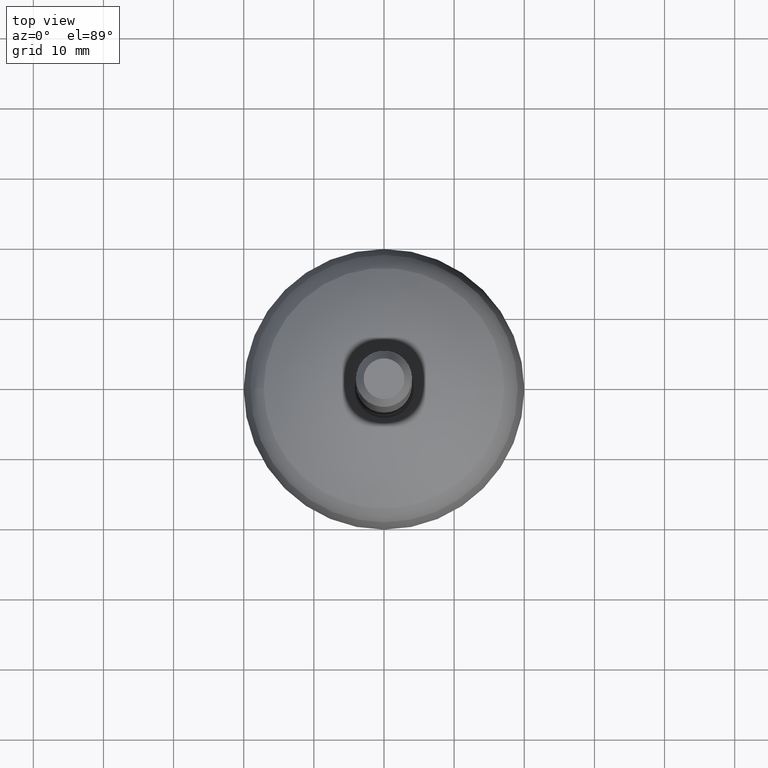
[diagram: clean part render]
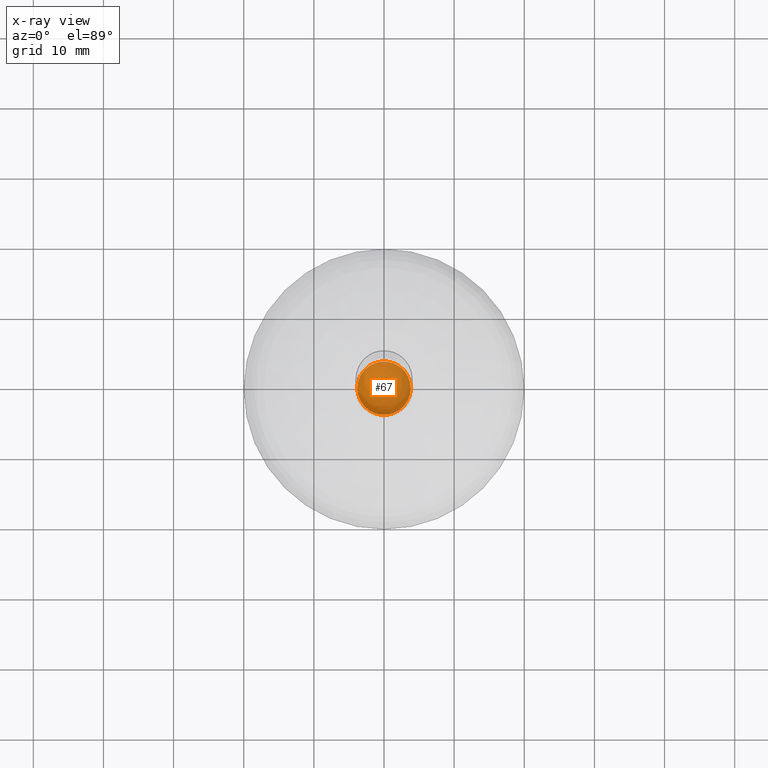
[diagram: x-ray — body ghosted, one internal face saturated and labeled with its STEP entity id]
A machine part, top view, then the same camera in x-ray: the body is ghosted and one INTERNAL B-rep face — a face not visible from any outside direction — is saturated and labeled: STEP entity #67.
In plain terms, the highlighted face is a freeform B-spline surface patch.
Its self-contained STEP definition (entity closure, byte-faithful):
#2=CARTESIAN_POINT('',(3.810523784241874,-0.000000215555772,8.535202277450591));
#3=CARTESIAN_POINT('',(2.540346776277441,-0.000000143703711,6.335196045854904));
#4=CARTESIAN_POINT('',(-0.000000132000216,8.052822E-015,6.335203443266764));
#5=CARTESIAN_POINT('',(3.810523999797659,3.810523784241881,8.535202277450591));
#6=CARTESIAN_POINT('',(2.540346919981162,2.540346776277445,6.335196045854901));
#7=CARTESIAN_POINT('',(-0.000000132000226,-0.000000132000215,6.335203443266761));
#8=CARTESIAN_POINT('',(0.0,3.810523784241879,8.535202277450587));
#9=CARTESIAN_POINT('',(0.0,2.540346776277445,6.335196045854903));
#10=CARTESIAN_POINT('',(0.0,-0.000000132000215,6.335203443266762));
#11=CARTESIAN_POINT('',(-3.810523784241880,3.810523784241880,8.535202277450589));
#12=CARTESIAN_POINT('',(-2.540346776277445,2.540346776277446,6.335196045854902));
#13=CARTESIAN_POINT('',(0.000000132000216,-0.000000132000218,6.335203443266760));
#14=CARTESIAN_POINT('',(-3.810523784241879,5.857621E-016,8.535202277450587));
#15=CARTESIAN_POINT('',(-2.540346776277445,5.857621E-016,6.335196045854903));
#16=CARTESIAN_POINT('',(0.000000132000216,5.857621E-016,6.335203443266762));
#17=CARTESIAN_POINT('',(-3.810523784241880,-3.810523784241879,8.535202277450589));
#18=CARTESIAN_POINT('',(-2.540346776277445,-2.540346776277445,6.335196045854902));
#19=CARTESIAN_POINT('',(0.000000132000218,0.000000132000216,6.335203443266760));
#20=CARTESIAN_POINT('',(0.0,-3.810523784241878,8.535202277450587));
#21=CARTESIAN_POINT('',(0.0,-2.540346776277445,6.335196045854903));
#22=CARTESIAN_POINT('',(0.0,0.000000132000216,6.335203443266762));
#23=CARTESIAN_POINT('',(3.810523999797659,-3.810523784241880,8.535202277450591));
#24=CARTESIAN_POINT('',(2.540346919981162,-2.540346776277444,6.335196045854901));
#25=CARTESIAN_POINT('',(-0.000000132000223,0.000000132000219,6.335203443266761));
#26=CARTESIAN_POINT('',(3.810523784241873,0.000000215555773,8.535202277450587));
#27=CARTESIAN_POINT('',(2.540346776277441,0.000000143703713,6.335196045854902));
#28=CARTESIAN_POINT('',(-0.000000132000216,-6.881298E-015,6.335203443266762));
#36=(BOUNDED_SURFACE()B_SPLINE_SURFACE(2,2,((#2,#5,#8,#11,#14,#17,#20,#23,#26),(#3,#6,#9,#12,#15,#18,#21,#24,#27),(#4,#7,#10,#13,#16,#19,#22,#25,#28)),.UNSPECIFIED.,.F.,.T.,.U.)B_SPLINE_SURFACE_WITH_KNOTS((3,3),(3,2,2,2,3),(0.666666448429103,1.000000010000000),(-1.000000E-008,0.250000000000000,0.500000000000000,0.750000000000000,1.000000010000000),.UNSPECIFIED.)GEOMETRIC_REPRESENTATION_ITEM()RATIONAL_B_SPLINE_SURFACE(((0.999999848001203,0.707106645422901,0.999999824569749,0.707106657138627,0.999999824569749,0.707106657138627,0.999999824569749,0.707106645422901,0.999999848001203),(0.866024939728828,0.612372083064041,0.866024919436601,0.612372093210154,0.866024919436601,0.612372093210154,0.866024919436601,0.612372083064041,0.866024939728828),(1.000000031469963,0.707106775154900,1.000000008038505,0.707106786870629,1.000000008038505,0.707106786870629,1.000000008038505,0.707106775154900,1.000000031469963)))REPRESENTATION_ITEM('')SURFACE());
#37=CARTESIAN_POINT('',(1.860083E-015,5.857621E-016,6.335203443266379));
#38=VERTEX_POINT('',#37);
#39=CARTESIAN_POINT('',(3.810523718241713,5.857621E-016,8.535202163135025));
#40=VERTEX_POINT('',#39);
#41=CARTESIAN_POINT('',(0.000012680664099,5.857621E-016,10.735203443248107));
#42=DIRECTION('',(0.0,-1.0,0.0));
#43=DIRECTION('',(1.0,0.0,0.0));
#44=AXIS2_PLACEMENT_3D('',#41,#42,#43);
#45=CIRCLE('',#44,4.400000000000000);
#46=EDGE_CURVE('',#38,#40,#45,.T.);
#47=ORIENTED_EDGE('',*,*,#46,.T.);
#48=CARTESIAN_POINT('',(-3.810523718241713,5.857621E-016,8.535202163135025));
#49=VERTEX_POINT('',#48);
#50=CARTESIAN_POINT('',(0.0,5.857621E-016,8.535202163135025));
#51=DIRECTION('',(0.0,0.0,1.0));
#52=DIRECTION('',(1.0,0.0,0.0));
#53=AXIS2_PLACEMENT_3D('',#50,#51,#52);
#54=CIRCLE('',#53,3.810523718241713);
#55=EDGE_CURVE('',#40,#49,#54,.T.);
#56=ORIENTED_EDGE('',*,*,#55,.T.);
#57=CARTESIAN_POINT('',(0.0,5.857621E-016,8.535202163135025));
#58=DIRECTION('',(0.0,0.0,1.0));
#59=DIRECTION('',(1.0,0.0,0.0));
#60=AXIS2_PLACEMENT_3D('',#57,#58,#59);
#61=CIRCLE('',#60,3.810523718241713);
#62=EDGE_CURVE('',#49,#40,#61,.T.);
#63=ORIENTED_EDGE('',*,*,#62,.T.);
#64=ORIENTED_EDGE('',*,*,#46,.F.);
#65=EDGE_LOOP('',(#47,#56,#63,#64));
#66=FACE_OUTER_BOUND('',#65,.T.);
#67=ADVANCED_FACE('',(#66),#36,.F.);